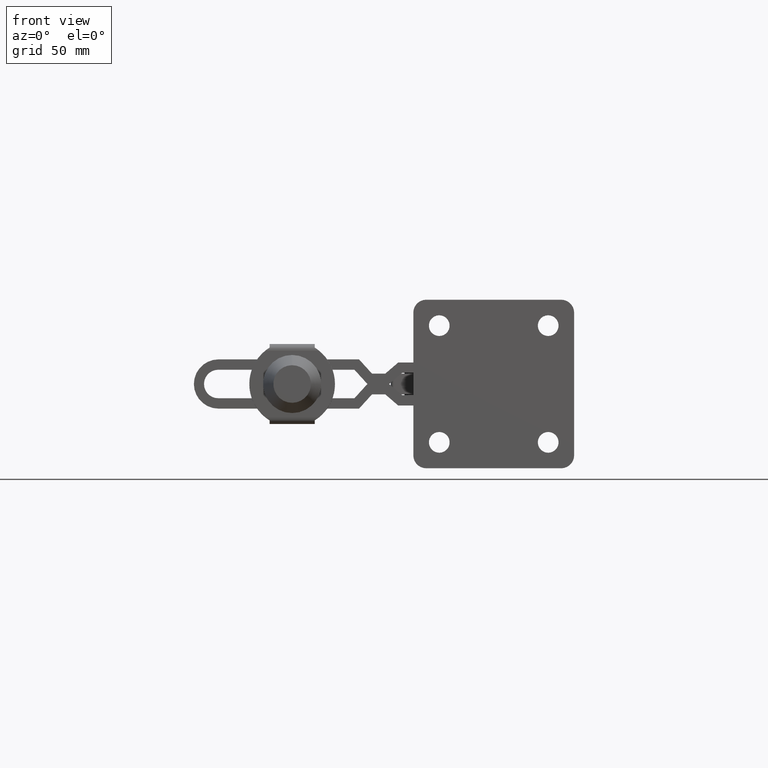
[diagram: clean part render]
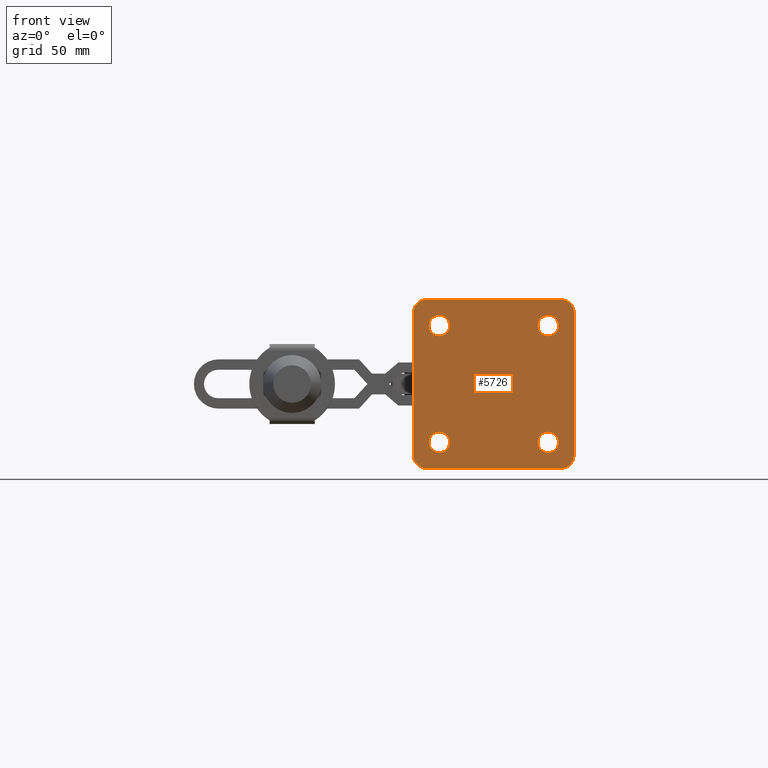
[diagram: same view with one face highlighted and labeled with its STEP entity id]
A machine part, front view. The second image highlights one B-rep face of the part: STEP entity #5726.
In plain terms, the highlighted planar face has unit normal (0, 1, 0).
Its self-contained STEP definition (entity closure, byte-faithful):
#15 = EDGE_CURVE ( 'NONE', #6396, #1460, #3054, .T. ) ;
#213 = CARTESIAN_POINT ( 'NONE',  ( 0.0000000000000000000, 0.0000000000000000000, -27.49999999999996400 ) ) ;
#256 = AXIS2_PLACEMENT_3D ( 'NONE', #5962, #6190, #9241 ) ;
#267 = AXIS2_PLACEMENT_3D ( 'NONE', #7595, #2891, #8375 ) ;
#318 = VERTEX_POINT ( 'NONE', #6447 ) ;
#351 = CIRCLE ( 'NONE', #5705, 5.000000000000008000 ) ;
#354 = VERTEX_POINT ( 'NONE', #677 ) ;
#430 = FACE_BOUND ( 'NONE', #1078, .T. ) ;
#439 = EDGE_LOOP ( 'NONE', ( #9704, #10053, #2945, #7323, #705, #2343, #6580, #4374 ) ) ;
#453 = VECTOR ( 'NONE', #2856, 1000.000000000000000 ) ;
#524 = VERTEX_POINT ( 'NONE', #7094 ) ;
#555 = CARTESIAN_POINT ( 'NONE',  ( -61.99999999999994300, 0.0000000000000000000, -27.49999999999996400 ) ) ;
#568 = DIRECTION ( 'NONE',  ( 0.0000000000000000000, 0.0000000000000000000, 1.000000000000000000 ) ) ;
#639 = DIRECTION ( 'NONE',  ( 0.0000000000000000000, 0.0000000000000000000, 1.000000000000000000 ) ) ;
#677 = CARTESIAN_POINT ( 'NONE',  ( -10.00000000000000900, 0.0000000000000000000, 18.50000000000001400 ) ) ;
#705 = ORIENTED_EDGE ( 'NONE', *, *, #5318, .T. ) ;
#745 = DIRECTION ( 'NONE',  ( 0.0000000000000000000, 0.0000000000000000000, 1.000000000000000000 ) ) ;
#790 = CARTESIAN_POINT ( 'NONE',  ( -5.000000000000004400, 0.0000000000000000000, 27.49999999999996400 ) ) ;
#794 = VERTEX_POINT ( 'NONE', #3808 ) ;
#956 = CARTESIAN_POINT ( 'NONE',  ( 0.0000000000000000000, 0.0000000000000000000, -4.000000000000000000 ) ) ;
#1073 = EDGE_CURVE ( 'NONE', #794, #1192, #5666, .T. ) ;
#1078 = EDGE_LOOP ( 'NONE', ( #6001, #9796 ) ) ;
#1111 = LINE ( 'NONE', #9877, #8466 ) ;
#1192 = VERTEX_POINT ( 'NONE', #9761 ) ;
#1293 = ORIENTED_EDGE ( 'NONE', *, *, #4564, .T. ) ;
#1303 = ORIENTED_EDGE ( 'NONE', *, *, #1328, .F. ) ;
#1328 = EDGE_CURVE ( 'NONE', #1460, #6396, #3430, .T. ) ;
#1403 = LINE ( 'NONE', #7411, #7408 ) ;
#1459 = PLANE ( 'NONE',  #4065 ) ;
#1460 = VERTEX_POINT ( 'NONE', #1916 ) ;
#1530 = VERTEX_POINT ( 'NONE', #6938 ) ;
#1573 = DIRECTION ( 'NONE',  ( 0.0000000000000000000, 0.0000000000000000000, -1.000000000000000000 ) ) ;
#1691 = EDGE_CURVE ( 'NONE', #7336, #5201, #1111, .T. ) ;
#1759 = DIRECTION ( 'NONE',  ( -0.0000000000000000000, -0.0000000000000000000, 1.000000000000000000 ) ) ;
#1790 = CARTESIAN_POINT ( 'NONE',  ( -10.00000000000000900, 0.0000000000000000000, 22.50000000000001800 ) ) ;
#1916 = CARTESIAN_POINT ( 'NONE',  ( -51.99999999999993600, 0.0000000000000000000, 26.50000000000002100 ) ) ;
#2017 = AXIS2_PLACEMENT_3D ( 'NONE', #3592, #9109, #6076 ) ;
#2038 = LINE ( 'NONE', #956, #9929 ) ;
#2058 = CIRCLE ( 'NONE', #8487, 5.000000000000008000 ) ;
#2234 = DIRECTION ( 'NONE',  ( 0.0000000000000000000, 0.0000000000000000000, -1.000000000000000000 ) ) ;
#2318 = CARTESIAN_POINT ( 'NONE',  ( -56.99999999999994300, 0.0000000000000000000, -32.49999999999997200 ) ) ;
#2343 = ORIENTED_EDGE ( 'NONE', *, *, #8548, .T. ) ;
#2372 = AXIS2_PLACEMENT_3D ( 'NONE', #1790, #7277, #2581 ) ;
#2520 = EDGE_CURVE ( 'NONE', #7947, #524, #351, .T. ) ;
#2581 = DIRECTION ( 'NONE',  ( 0.0000000000000000000, 0.0000000000000000000, -1.000000000000000000 ) ) ;
#2673 = AXIS2_PLACEMENT_3D ( 'NONE', #6829, #10036, #5805 ) ;
#2690 = CIRCLE ( 'NONE', #2898, 4.000000000000003600 ) ;
#2856 = DIRECTION ( 'NONE',  ( -1.000000000000000000, 0.0000000000000000000, 0.0000000000000000000 ) ) ;
#2891 = DIRECTION ( 'NONE',  ( 0.0000000000000000000, -1.000000000000000000, 0.0000000000000000000 ) ) ;
#2898 = AXIS2_PLACEMENT_3D ( 'NONE', #4504, #10043, #5309 ) ;
#2945 = ORIENTED_EDGE ( 'NONE', *, *, #1691, .F. ) ;
#3054 = CIRCLE ( 'NONE', #2673, 4.000000000000003600 ) ;
#3430 = CIRCLE ( 'NONE', #256, 4.000000000000003600 ) ;
#3447 = CIRCLE ( 'NONE', #6507, 4.000000000000003600 ) ;
#3592 = CARTESIAN_POINT ( 'NONE',  ( -51.99999999999993600, 0.0000000000000000000, -22.50000000000001800 ) ) ;
#3613 = CARTESIAN_POINT ( 'NONE',  ( -5.000000000000004400, 0.0000000000000000000, 32.49999999999997200 ) ) ;
#3627 = VERTEX_POINT ( 'NONE', #4943 ) ;
#3711 = AXIS2_PLACEMENT_3D ( 'NONE', #9133, #4394, #9937 ) ;
#3742 = DIRECTION ( 'NONE',  ( 0.0000000000000000000, -1.000000000000000000, 0.0000000000000000000 ) ) ;
#3808 = CARTESIAN_POINT ( 'NONE',  ( -51.99999999999993600, 0.0000000000000000000, -26.50000000000002100 ) ) ;
#3834 = CIRCLE ( 'NONE', #4592, 5.000000000000008000 ) ;
#4065 = AXIS2_PLACEMENT_3D ( 'NONE', #6149, #6947, #2234 ) ;
#4078 = FACE_BOUND ( 'NONE', #6483, .T. ) ;
#4374 = ORIENTED_EDGE ( 'NONE', *, *, #2520, .T. ) ;
#4394 = DIRECTION ( 'NONE',  ( -0.0000000000000000000, 1.000000000000000000, -0.0000000000000000000 ) ) ;
#4476 = EDGE_CURVE ( 'NONE', #4561, #354, #7119, .T. ) ;
#4504 = CARTESIAN_POINT ( 'NONE',  ( -51.99999999999993600, 0.0000000000000000000, -22.50000000000001800 ) ) ;
#4561 = VERTEX_POINT ( 'NONE', #6835 ) ;
#4564 = EDGE_CURVE ( 'NONE', #1192, #794, #2690, .T. ) ;
#4592 = AXIS2_PLACEMENT_3D ( 'NONE', #10150, #5423, #745 ) ;
#4686 = CARTESIAN_POINT ( 'NONE',  ( -56.99999999999994300, 0.0000000000000000000, 32.49999999999997200 ) ) ;
#4943 = CARTESIAN_POINT ( 'NONE',  ( 0.0000000000000000000, 0.0000000000000000000, 27.49999999999996400 ) ) ;
#4975 = EDGE_CURVE ( 'NONE', #8705, #7947, #6726, .T. ) ;
#5135 = ORIENTED_EDGE ( 'NONE', *, *, #8783, .T. ) ;
#5201 = VERTEX_POINT ( 'NONE', #2318 ) ;
#5262 = DIRECTION ( 'NONE',  ( -0.0000000000000000000, 1.000000000000000000, -0.0000000000000000000 ) ) ;
#5309 = DIRECTION ( 'NONE',  ( 0.0000000000000000000, 0.0000000000000000000, 1.000000000000000000 ) ) ;
#5318 = EDGE_CURVE ( 'NONE', #7454, #3627, #2038, .T. ) ;
#5319 = DIRECTION ( 'NONE',  ( -0.0000000000000000000, 1.000000000000000000, -0.0000000000000000000 ) ) ;
#5423 = DIRECTION ( 'NONE',  ( -0.0000000000000000000, 1.000000000000000000, -0.0000000000000000000 ) ) ;
#5574 = CARTESIAN_POINT ( 'NONE',  ( -5.000000000000003600, 0.0000000000000000000, -32.49999999999997200 ) ) ;
#5666 = CIRCLE ( 'NONE', #2017, 4.000000000000003600 ) ;
#5705 = AXIS2_PLACEMENT_3D ( 'NONE', #8468, #3742, #9274 ) ;
#5726 = ADVANCED_FACE ( 'NONE', ( #4078, #8042, #6187, #6443, #430 ), #1459, .F. ) ;
#5749 = EDGE_CURVE ( 'NONE', #5201, #7732, #3834, .T. ) ;
#5805 = DIRECTION ( 'NONE',  ( 0.0000000000000000000, 0.0000000000000000000, -1.000000000000000000 ) ) ;
#5962 = CARTESIAN_POINT ( 'NONE',  ( -51.99999999999993600, 0.0000000000000000000, 22.50000000000001800 ) ) ;
#6001 = ORIENTED_EDGE ( 'NONE', *, *, #9639, .F. ) ;
#6025 = EDGE_LOOP ( 'NONE', ( #6296, #1303 ) ) ;
#6076 = DIRECTION ( 'NONE',  ( 0.0000000000000000000, 0.0000000000000000000, 1.000000000000000000 ) ) ;
#6149 = CARTESIAN_POINT ( 'NONE',  ( -62.00000000000000000, 0.0000000000000000000, -4.000000000000000000 ) ) ;
#6187 = FACE_OUTER_BOUND ( 'NONE', #439, .T. ) ;
#6190 = DIRECTION ( 'NONE',  ( 0.0000000000000000000, -1.000000000000000000, 0.0000000000000000000 ) ) ;
#6267 = DIRECTION ( 'NONE',  ( 0.0000000000000000000, -1.000000000000000000, 0.0000000000000000000 ) ) ;
#6296 = ORIENTED_EDGE ( 'NONE', *, *, #15, .F. ) ;
#6396 = VERTEX_POINT ( 'NONE', #7244 ) ;
#6443 = FACE_BOUND ( 'NONE', #6025, .T. ) ;
#6447 = CARTESIAN_POINT ( 'NONE',  ( -10.00000000000000900, 0.0000000000000000000, -26.50000000000002100 ) ) ;
#6483 = EDGE_LOOP ( 'NONE', ( #1293, #6495 ) ) ;
#6495 = ORIENTED_EDGE ( 'NONE', *, *, #1073, .T. ) ;
#6497 = EDGE_CURVE ( 'NONE', #7732, #524, #1403, .T. ) ;
#6507 = AXIS2_PLACEMENT_3D ( 'NONE', #10052, #5319, #639 ) ;
#6580 = ORIENTED_EDGE ( 'NONE', *, *, #4975, .T. ) ;
#6620 = EDGE_LOOP ( 'NONE', ( #8411, #5135 ) ) ;
#6726 = LINE ( 'NONE', #3613, #453 ) ;
#6829 = CARTESIAN_POINT ( 'NONE',  ( -51.99999999999993600, 0.0000000000000000000, 22.50000000000001800 ) ) ;
#6835 = CARTESIAN_POINT ( 'NONE',  ( -10.00000000000000900, 0.0000000000000000000, 26.50000000000002100 ) ) ;
#6938 = CARTESIAN_POINT ( 'NONE',  ( -10.00000000000000900, 0.0000000000000000000, -18.50000000000001400 ) ) ;
#6947 = DIRECTION ( 'NONE',  ( 0.0000000000000000000, 1.000000000000000000, 0.0000000000000000000 ) ) ;
#7094 = CARTESIAN_POINT ( 'NONE',  ( -61.99999999999994300, 0.0000000000000000000, 27.49999999999996400 ) ) ;
#7119 = CIRCLE ( 'NONE', #267, 4.000000000000003600 ) ;
#7131 = CIRCLE ( 'NONE', #2372, 4.000000000000003600 ) ;
#7244 = CARTESIAN_POINT ( 'NONE',  ( -51.99999999999993600, 0.0000000000000000000, 18.50000000000001400 ) ) ;
#7277 = DIRECTION ( 'NONE',  ( 0.0000000000000000000, -1.000000000000000000, 0.0000000000000000000 ) ) ;
#7323 = ORIENTED_EDGE ( 'NONE', *, *, #9924, .F. ) ;
#7336 = VERTEX_POINT ( 'NONE', #5574 ) ;
#7408 = VECTOR ( 'NONE', #9769, 1000.000000000000000 ) ;
#7411 = CARTESIAN_POINT ( 'NONE',  ( -62.00000000000000000, 0.0000000000000000000, -4.000000000000000000 ) ) ;
#7454 = VERTEX_POINT ( 'NONE', #213 ) ;
#7595 = CARTESIAN_POINT ( 'NONE',  ( -10.00000000000000900, 0.0000000000000000000, 22.50000000000001800 ) ) ;
#7732 = VERTEX_POINT ( 'NONE', #555 ) ;
#7809 = DIRECTION ( 'NONE',  ( -1.000000000000000000, 0.0000000000000000000, 0.0000000000000000000 ) ) ;
#7947 = VERTEX_POINT ( 'NONE', #4686 ) ;
#8009 = CIRCLE ( 'NONE', #3711, 4.000000000000003600 ) ;
#8042 = FACE_BOUND ( 'NONE', #6620, .T. ) ;
#8295 = EDGE_CURVE ( 'NONE', #1530, #318, #8009, .T. ) ;
#8354 = CARTESIAN_POINT ( 'NONE',  ( -5.000000000000003600, 0.0000000000000000000, 32.49999999999997200 ) ) ;
#8366 = CIRCLE ( 'NONE', #10071, 5.000000000000008000 ) ;
#8375 = DIRECTION ( 'NONE',  ( 0.0000000000000000000, 0.0000000000000000000, -1.000000000000000000 ) ) ;
#8411 = ORIENTED_EDGE ( 'NONE', *, *, #8295, .T. ) ;
#8466 = VECTOR ( 'NONE', #7809, 1000.000000000000000 ) ;
#8468 = CARTESIAN_POINT ( 'NONE',  ( -56.99999999999994300, 0.0000000000000000000, 27.49999999999996400 ) ) ;
#8487 = AXIS2_PLACEMENT_3D ( 'NONE', #10009, #5262, #568 ) ;
#8548 = EDGE_CURVE ( 'NONE', #3627, #8705, #8366, .T. ) ;
#8705 = VERTEX_POINT ( 'NONE', #8354 ) ;
#8783 = EDGE_CURVE ( 'NONE', #318, #1530, #3447, .T. ) ;
#9109 = DIRECTION ( 'NONE',  ( -0.0000000000000000000, 1.000000000000000000, -0.0000000000000000000 ) ) ;
#9133 = CARTESIAN_POINT ( 'NONE',  ( -10.00000000000000900, 0.0000000000000000000, -22.50000000000001800 ) ) ;
#9241 = DIRECTION ( 'NONE',  ( 0.0000000000000000000, 0.0000000000000000000, -1.000000000000000000 ) ) ;
#9274 = DIRECTION ( 'NONE',  ( 0.0000000000000000000, 0.0000000000000000000, -1.000000000000000000 ) ) ;
#9639 = EDGE_CURVE ( 'NONE', #354, #4561, #7131, .T. ) ;
#9704 = ORIENTED_EDGE ( 'NONE', *, *, #6497, .F. ) ;
#9761 = CARTESIAN_POINT ( 'NONE',  ( -51.99999999999993600, 0.0000000000000000000, -18.50000000000001400 ) ) ;
#9769 = DIRECTION ( 'NONE',  ( -0.0000000000000000000, -0.0000000000000000000, 1.000000000000000000 ) ) ;
#9796 = ORIENTED_EDGE ( 'NONE', *, *, #4476, .F. ) ;
#9877 = CARTESIAN_POINT ( 'NONE',  ( -5.000000000000004400, 0.0000000000000000000, -32.49999999999997200 ) ) ;
#9924 = EDGE_CURVE ( 'NONE', #7454, #7336, #2058, .T. ) ;
#9929 = VECTOR ( 'NONE', #1759, 1000.000000000000000 ) ;
#9937 = DIRECTION ( 'NONE',  ( 0.0000000000000000000, 0.0000000000000000000, 1.000000000000000000 ) ) ;
#10009 = CARTESIAN_POINT ( 'NONE',  ( -5.000000000000004400, 0.0000000000000000000, -27.49999999999996400 ) ) ;
#10036 = DIRECTION ( 'NONE',  ( 0.0000000000000000000, -1.000000000000000000, 0.0000000000000000000 ) ) ;
#10043 = DIRECTION ( 'NONE',  ( -0.0000000000000000000, 1.000000000000000000, -0.0000000000000000000 ) ) ;
#10052 = CARTESIAN_POINT ( 'NONE',  ( -10.00000000000000900, 0.0000000000000000000, -22.50000000000001800 ) ) ;
#10053 = ORIENTED_EDGE ( 'NONE', *, *, #5749, .F. ) ;
#10071 = AXIS2_PLACEMENT_3D ( 'NONE', #790, #6267, #1573 ) ;
#10150 = CARTESIAN_POINT ( 'NONE',  ( -56.99999999999994300, 0.0000000000000000000, -27.49999999999996400 ) ) ;